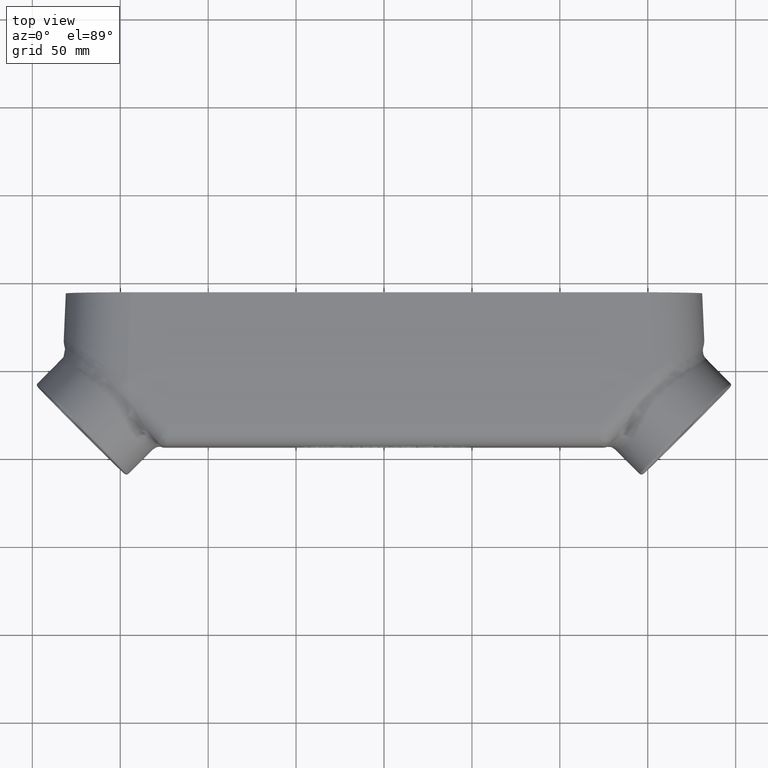
[diagram: clean part render]
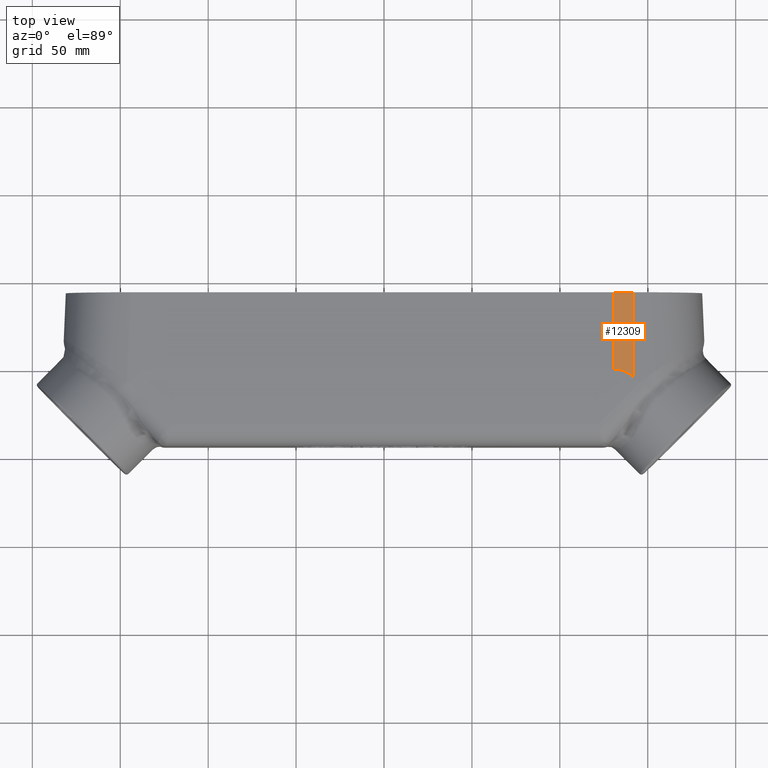
[diagram: same view with one face highlighted and labeled with its STEP entity id]
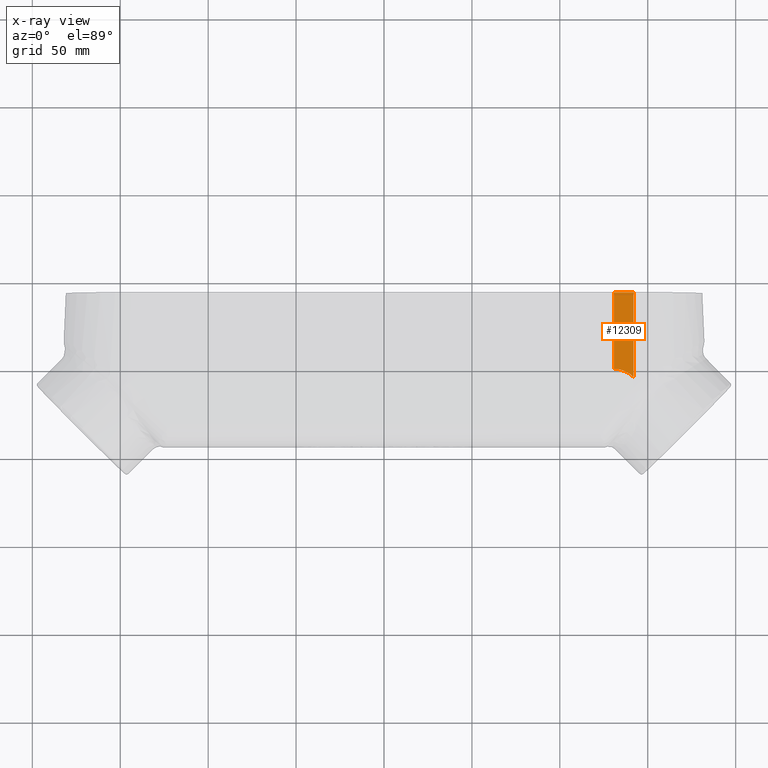
[diagram: x-ray of the same camera — body ghosted, the highlighted face saturated]
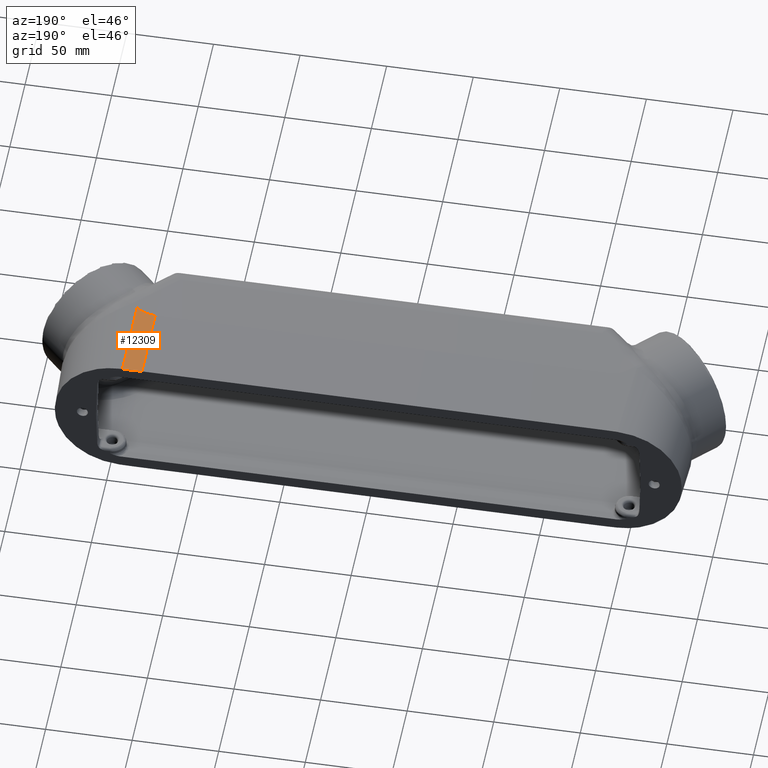
[diagram: same view with one face highlighted and labeled with its STEP entity id]
A machine part, top view. The second image highlights one B-rep face of the part: STEP entity #12309.
The next image is the same camera in x-ray: the body ghosted, the highlighted face saturated — about 0% of this face is hidden behind the body in this view.
A second angle (auxiliary view) of the same face is appended — the face is thin or edge-on in the first view.
In plain terms, the highlighted face is a freeform B-spline surface patch.
Its self-contained STEP definition (entity closure, byte-faithful):
#156=B_SPLINE_CURVE_WITH_KNOTS('',3,(#19542,#19543,#19544,#19545,#19546,
#19547),.UNSPECIFIED.,.F.,.F.,(4,2,4),(0.00876983474085753,0.493587264086793,
1.10011780531044),.UNSPECIFIED.);
#731=B_SPLINE_SURFACE_WITH_KNOTS('',3,3,((#26115,#26116,#26117,#26118),
(#26119,#26120,#26121,#26122),(#26123,#26124,#26125,#26126),(#26127,#26128,
#26129,#26130),(#26131,#26132,#26133,#26134)),.UNSPECIFIED.,.F.,.F.,.F.,
(4,1,4),(4,4),(-0.785398163397447,-0.448798950512826,1.37208485244206E-15),
(0.,4.83224887586801),.UNSPECIFIED.);
#1658=FACE_OUTER_BOUND('',#2428,.T.);
#2428=EDGE_LOOP('',(#10369,#10370,#10371,#10372));
#3415=LINE('',#25935,#4305);
#3439=LINE('',#26136,#4329);
#4305=VECTOR('',#15280,0.393700787401575);
#4329=VECTOR('',#15354,0.393700787401575);
#4913=CIRCLE('',#13263,0.625);
#5284=VERTEX_POINT('',#19539);
#5285=VERTEX_POINT('',#19541);
#5829=VERTEX_POINT('',#25934);
#5856=VERTEX_POINT('',#26135);
#6597=EDGE_CURVE('',#5284,#5285,#156,.F.);
#7408=EDGE_CURVE('',#5285,#5829,#3415,.T.);
#7448=EDGE_CURVE('',#5284,#5856,#3439,.T.);
#7449=EDGE_CURVE('',#5829,#5856,#4913,.T.);
#10369=ORIENTED_EDGE('',*,*,#7408,.F.);
#10370=ORIENTED_EDGE('',*,*,#6597,.F.);
#10371=ORIENTED_EDGE('',*,*,#7448,.T.);
#10372=ORIENTED_EDGE('',*,*,#7449,.F.);
#12309=ADVANCED_FACE('',(#1658),#731,.T.);
#13263=AXIS2_PLACEMENT_3D('',#26137,#15355,#15356);
#15280=DIRECTION('',(3.21174203352102E-18,-0.999657324975557,0.0261769483078732));
#15354=DIRECTION('',(3.21174203352102E-18,-0.999657324975557,0.0261769483078732));
#15355=DIRECTION('center_axis',(1.22693523925974E-16,0.,1.));
#15356=DIRECTION('ref_axis',(0.707106781186547,0.707106781186548,-8.675742277573E-17));
#19539=CARTESIAN_POINT('',(5.14736652351681,1.71875,1.54874294730296));
#19541=CARTESIAN_POINT('',(5.58930826175841,1.71875,1.54394939801796));
#19542=CARTESIAN_POINT('Ctrl Pts',(5.58930826175841,1.71875,1.54394939801796));
#19543=CARTESIAN_POINT('Ctrl Pts',(5.52549146015079,1.71875,1.54562049977965));
#19544=CARTESIAN_POINT('Ctrl Pts',(5.45583502913711,1.71874999999998,1.54672745746112));
#19545=CARTESIAN_POINT('Ctrl Pts',(5.31129142767725,1.71874999999998,1.54833448523022));
#19546=CARTESIAN_POINT('Ctrl Pts',(5.22798532105365,1.71875,1.54874294730296));
#19547=CARTESIAN_POINT('Ctrl Pts',(5.14736652351682,1.71875,1.54874294730296));
#25934=CARTESIAN_POINT('',(5.58930826175841,-0.183058261758408,1.59375));
#25935=CARTESIAN_POINT('',(5.58930826175841,-0.183058261758408,1.59375));
#26115=CARTESIAN_POINT('Ctrl Pts',(5.14736652351681,-1.74838271594513E-16,
1.59375));
#26116=CARTESIAN_POINT('Ctrl Pts',(5.14736652351681,0.633936087252803,1.57714979933932));
#26117=CARTESIAN_POINT('Ctrl Pts',(5.14736652351681,1.26787217450561,1.56054959867864));
#26118=CARTESIAN_POINT('Ctrl Pts',(5.14736652351681,1.90180826175841,1.54394939801796));
#26119=CARTESIAN_POINT('Ctrl Pts',(5.21749135953444,-1.79742473644581E-16,
1.59375));
#26120=CARTESIAN_POINT('Ctrl Pts',(5.21749135953444,0.633936087252802,1.57714979933932));
#26121=CARTESIAN_POINT('Ctrl Pts',(5.21749135953444,1.26787217450561,1.56054959867864));
#26122=CARTESIAN_POINT('Ctrl Pts',(5.21749135953444,1.90180826175841,1.54394939801796));
#26123=CARTESIAN_POINT('Ctrl Pts',(5.38113966599994,-0.0277593345347689,
1.59375));
#26124=CARTESIAN_POINT('Ctrl Pts',(5.38113966599994,0.606176752718034,1.57714979933932));
#26125=CARTESIAN_POINT('Ctrl Pts',(5.38113966599994,1.24011283997084,1.56054959867864));
#26126=CARTESIAN_POINT('Ctrl Pts',(5.38113966599994,1.87404892722364,1.54394939801796));
#26127=CARTESIAN_POINT('Ctrl Pts',(5.52319393232153,-0.116943932321528,
1.59375));
#26128=CARTESIAN_POINT('Ctrl Pts',(5.52319393232153,0.516992154931275,1.57714979933932));
#26129=CARTESIAN_POINT('Ctrl Pts',(5.52319393232153,1.15092824218408,1.56054959867864));
#26130=CARTESIAN_POINT('Ctrl Pts',(5.52319393232153,1.78486432943688,1.54394939801796));
#26131=CARTESIAN_POINT('Ctrl Pts',(5.58930826175841,-0.183058261758408,
1.59375));
#26132=CARTESIAN_POINT('Ctrl Pts',(5.58930826175841,0.450877825494395,1.57714979933932));
#26133=CARTESIAN_POINT('Ctrl Pts',(5.58930826175841,1.0848139127472,1.56054959867864));
#26134=CARTESIAN_POINT('Ctrl Pts',(5.58930826175841,1.71875,1.54394939801796));
#26135=CARTESIAN_POINT('',(5.14736652351681,0.,1.59375));
#26136=CARTESIAN_POINT('',(5.14736652351681,0.,1.59375));
#26137=CARTESIAN_POINT('Origin',(5.14736652351681,-0.625,1.59375));